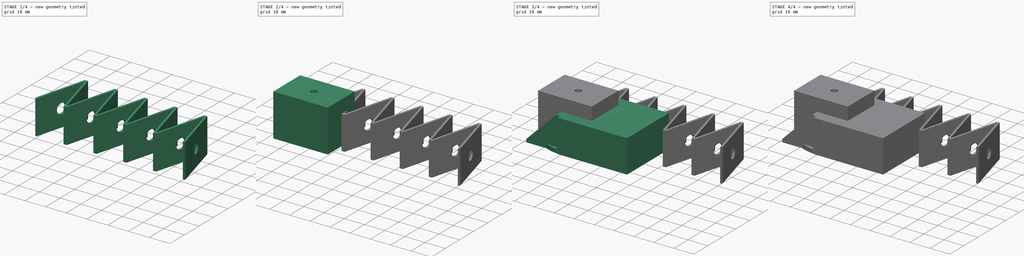
[diagram: build sequence overview — one tinted view per stage of 4, left to right]
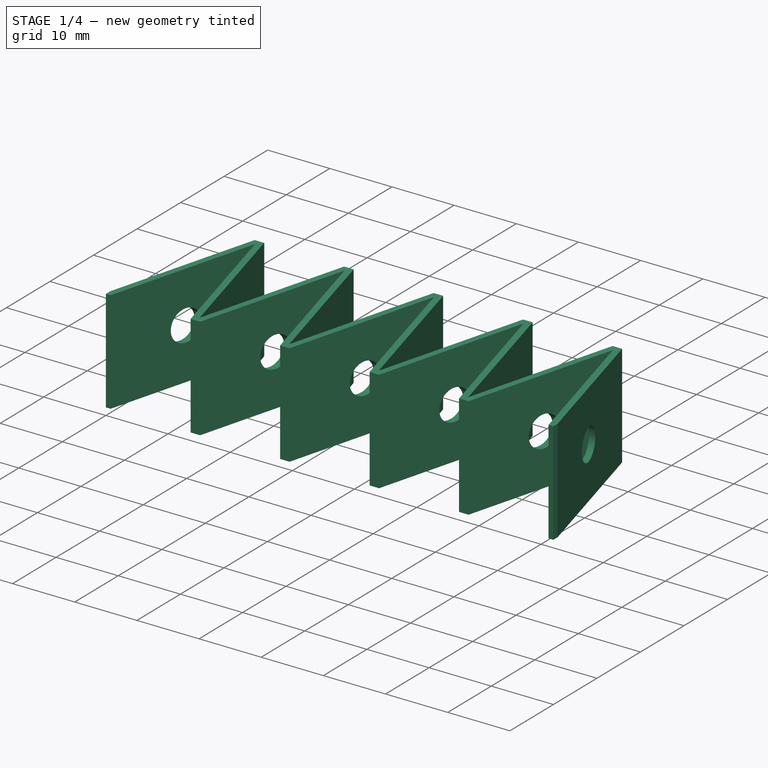
[diagram: stage 1 of 4 — iso view after this stage's code; geometry added in this stage tinted green]
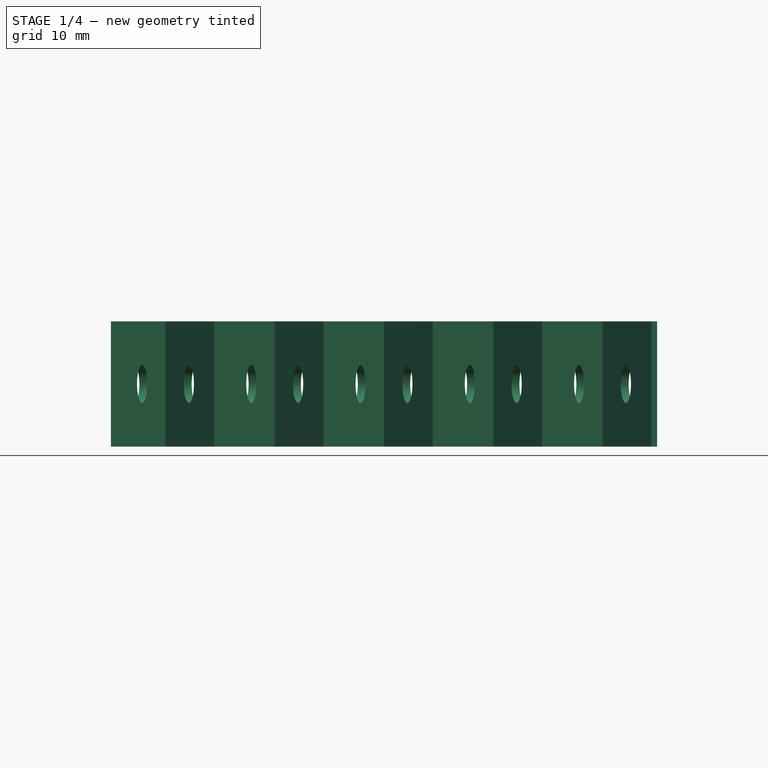
[diagram: stage 1 of 4 — front view after this stage's code; geometry added in this stage tinted green]
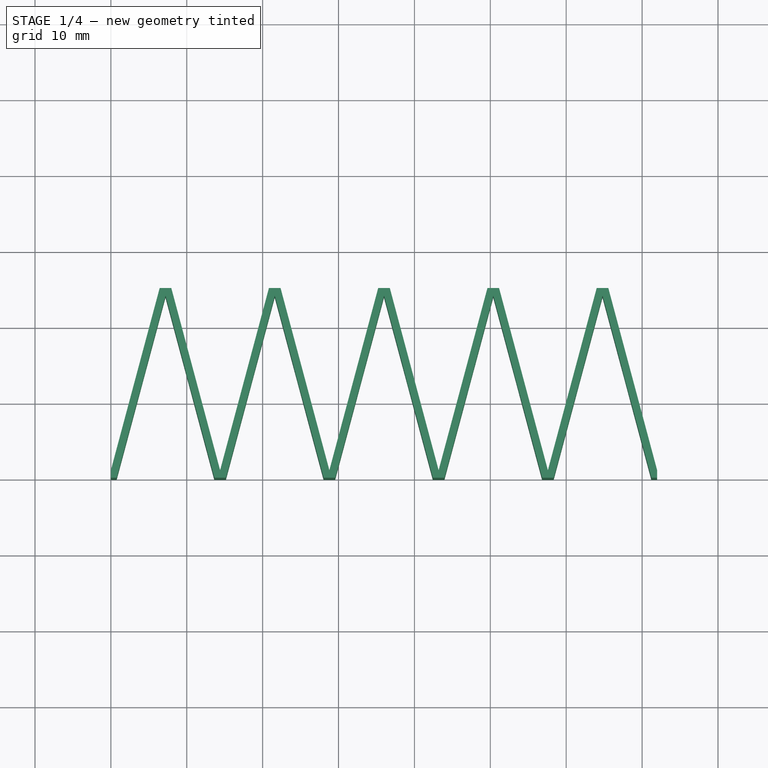
[diagram: stage 1 of 4 — top view after this stage's code; geometry added in this stage tinted green]
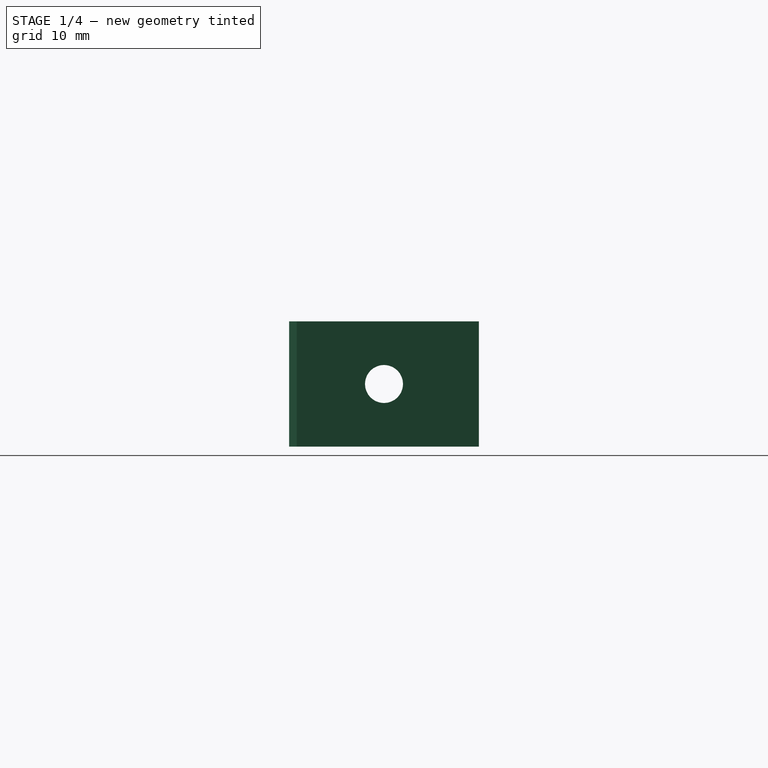
[diagram: stage 1 of 4 — right view after this stage's code; geometry added in this stage tinted green]
FCSTD DOCUMENT  (FreeCAD 0.21R33771 (Git))
Label: door
License: All rights reserved
LicenseURL: https://en.wikipedia.org/wiki/All_rights_reserved
objects: Sketcher::SketchObject×9, PartDesign::Pad×6, PartDesign::Plane×4, PartDesign::Body×4, PartDesign::Pocket×3, Spreadsheet::Sheet×1, PartDesign::Chamfer×1
note: 37 computed .brp shape members not serialized (recipe doc carries the construction recipe); baked Part::Feature solids carry a one-line shape summary decoded from their .brp

FEATURE [PartDesign::Body] Body001  label="Latch"
  Group = -> [Sketch003,Pad002,Chamfer]
  Origin = -> Origin001
  Tip = -> Chamfer
FEATURE [Sketcher::SketchObject] Sketch005  label="ShapeSketch"
  FullyConstrained = true
  MapMode = 5
  Support = -> [XY_Plane002]
  expr: Constraints[7] = 25 mm
  sketch-geometry (39):
    g0: LineSegment StartX=0 StartY=0 StartZ=0 EndX=80 EndY=0 EndZ=0
    g1: LineSegment StartX=80 StartY=0 StartZ=0 EndX=80 EndY=25 EndZ=0
    g2: LineSegment StartX=80 StartY=25 StartZ=0 EndX=0 EndY=25 EndZ=0
    g3: LineSegment StartX=0 StartY=25 StartZ=0 EndX=0 EndY=0 EndZ=0
    g4: LineSegment StartX=0 StartY=24 StartZ=0 EndX=80 EndY=24 EndZ=0
    g5: LineSegment StartX=0 StartY=1 StartZ=0 EndX=80 EndY=1 EndZ=0
    g6: LineSegment StartX=0 StartY=1 StartZ=0 EndX=6.43078 EndY=25 EndZ=0
    g7: LineSegment StartX=6.43078 StartY=25 StartZ=0 EndX=7.96543 EndY=25 EndZ=0
    g8: LineSegment StartX=7.96543 StartY=25 StartZ=0 EndX=14.3962 EndY=1 EndZ=0
    g9: LineSegment StartX=14.3962 StartY=1 StartZ=0 EndX=20.827 EndY=25 EndZ=0
    g10: LineSegment StartX=20.827 StartY=25 StartZ=0 EndX=22.3616 EndY=25 EndZ=0
    g11: LineSegment StartX=22.3616 StartY=25 StartZ=0 EndX=28.7924 EndY=1 EndZ=0
    g12: LineSegment StartX=0 StartY=0 StartZ=0 EndX=0.767327 EndY=0 EndZ=0
    g13: LineSegment StartX=0.767327 StartY=0 StartZ=0 EndX=7.19811 EndY=24 EndZ=0
    g14: LineSegment StartX=7.19811 StartY=24 StartZ=0 EndX=13.6289 EndY=0 EndZ=0
    g15: LineSegment StartX=13.6289 StartY=0 StartZ=0 EndX=15.1635 EndY=0 EndZ=0
    g16: LineSegment StartX=15.1635 StartY=0 StartZ=0 EndX=21.5943 EndY=24 EndZ=0
    g17: LineSegment StartX=21.5943 StartY=24 StartZ=0 EndX=28.0251 EndY=0 EndZ=0
    g18: LineSegment StartX=28.0251 StartY=0 StartZ=0 EndX=29.5598 EndY=0 EndZ=0
    g19: LineSegment StartX=28.7924 StartY=1 StartZ=0 EndX=35.2232 EndY=25 EndZ=0
    g20: LineSegment StartX=35.2232 StartY=25 StartZ=0 EndX=36.7579 EndY=25 EndZ=0
    g21: LineSegment StartX=36.7579 StartY=25 StartZ=0 EndX=43.1886 EndY=1 EndZ=0
    g22: LineSegment StartX=43.1886 StartY=1 StartZ=0 EndX=49.6194 EndY=25 EndZ=0
    g23: LineSegment StartX=49.6194 StartY=25 StartZ=0 EndX=51.1541 EndY=25 EndZ=0
    g24: LineSegment StartX=29.5598 StartY=0 StartZ=0 EndX=35.9905 EndY=24 EndZ=0
    g25: LineSegment StartX=35.9905 StartY=24 StartZ=0 EndX=42.4213 EndY=0 EndZ=0
    g26: LineSegment StartX=42.4213 StartY=0 StartZ=0 EndX=43.956 EndY=0 EndZ=0
    g27: LineSegment StartX=43.956 StartY=0 StartZ=0 EndX=50.3868 EndY=24 EndZ=0
    g28: LineSegment StartX=50.3868 StartY=24 StartZ=0 EndX=56.8175 EndY=0 EndZ=0
    g29: LineSegment StartX=56.8175 StartY=0 StartZ=0 EndX=58.3522 EndY=0 EndZ=0
    g30: LineSegment StartX=51.1541 StartY=25 StartZ=0 EndX=57.5849 EndY=1 EndZ=0
    g31: LineSegment StartX=57.5849 StartY=1 StartZ=0 EndX=64.0156 EndY=25 EndZ=0
    g32: LineSegment StartX=64.0156 StartY=25 StartZ=0 EndX=65.5503 EndY=25 EndZ=0
    g33: LineSegment StartX=65.5503 StartY=25 StartZ=0 EndX=71.9811 EndY=1 EndZ=0
    g34: LineSegment StartX=58.3522 StartY=0 StartZ=0 EndX=64.783 EndY=24 EndZ=0
    g35: LineSegment StartX=64.783 StartY=24 StartZ=0 EndX=71.2137 EndY=0 EndZ=0
    g36: LineSegment StartX=71.9811 StartY=1 StartZ=0 EndX=71.9811 EndY=0 EndZ=0
    g37: LineSegment StartX=71.9811 StartY=0 StartZ=0 EndX=71.2137 EndY=0 EndZ=0
    g38: LineSegment StartX=0 StartY=1 StartZ=0 EndX=0 EndY=0 EndZ=0
  constraints (116):
    c: Coincident(g0,g1)
    c: Coincident(g1,g2)
    c: Coincident(g2,g3)
    c: Coincident(g3,g0)
    c: Vertical(g1)
    c: Vertical(g3)
    c: Coincident(g0,g-1)
    c: Distance(g1) = 25
    c: Distance(g2) = 80
    c: PointOnObject(g4,g3)
    c: PointOnObject(g4,g1)
    c: Horizontal(g4)
    c: PointOnObject(g5,g3)
    c: PointOnObject(g5,g1)
    c: Horizontal(g5)
    c: Distance(g5,g0) = 1
    c: Distance(g4,g2) = 1
    c: Coincident(g5,g6)
    c: PointOnObject(g6,g2)
    c: Coincident(g6,g7)
    c: PointOnObject(g7,g2)
    c: Horizontal(g7)
    c: Coincident(g7,g8)
    c: PointOnObject(g8,g5)
    c: Coincident(g8,g9)
    c: PointOnObject(g9,g2)
    c: Coincident(g9,g10)
    c: PointOnObject(g10,g2)
    c: Coincident(g10,g11)
    c: PointOnObject(g11,g5)
    c: Coincident(g0,g12)
    c: PointOnObject(g12,g0)
    c: Horizontal(g12)
    c: Coincident(g12,g13)
    c: PointOnObject(g13,g4)
    c: Coincident(g13,g14)
    c: PointOnObject(g14,g0)
    c: Coincident(g14,g15)
    c: PointOnObject(g15,g0)
    c: Coincident(g15,g16)
    c: PointOnObject(g16,g4)
    c: Coincident(g16,g17)
    c: PointOnObject(g17,g0)
    c: Coincident(g17,g18)
    c: PointOnObject(g18,g0)
    c: Equal(g13,g14)
    c: Distance(g6,g13) = 1
    c: Distance(g13,g6) = 1
    c: Angle(g13,g14) = 0.523599
    c: Distance(g13,g8) = 1
    c: Distance(g8,g14) = 1
    c: Distance(g8,g16) = 1
    c: Distance(g16,g9) = 1
    c: Equal(g16,g17)
    c: Angle(g16,g17) = 0.523599
    c: Distance(g16,g11) = 1
    c: Distance(g11,g17) = 1
    c: Coincident(g11,g19)
    c: PointOnObject(g19,g2)
    c: Coincident(g19,g20)
    c: Coincident(g20,g21)
    c: PointOnObject(g21,g5)
    c: Coincident(g21,g22)
    c: PointOnObject(g22,g2)
    c: Coincident(g22,g23)
    c: Coincident(g18,g24)
    c: Coincident(g24,g25)
    c: PointOnObject(g25,g0)
    c: PointOnObject(g24,g4)
    c: PointOnObject(g20,g2)
    c: Distance(g11,g24) = 1
    c: Distance(g24,g19) = 1
    c: Equal(g25,g24)
    c: Angle(g24,g25) = 0.523599
    c: Distance(g24,g21) = 1
    c: Distance(g21,g25) = 1
    c: Coincident(g25,g26)
    c: PointOnObject(g26,g0)
    c: Coincident(g26,g27)
    c: PointOnObject(g27,g4)
    c: Coincident(g27,g28)
    c: PointOnObject(g28,g0)
    c: Coincident(g28,g29)
    c: PointOnObject(g29,g0)
    c: Coincident(g23,g30)
    c: PointOnObject(g30,g5)
    c: Coincident(g30,g31)
    c: PointOnObject(g31,g2)
    c: Distance(g21,g27) = 1
    c: Distance(g27,g22) = 1
    c: PointOnObject(g23,g2)
    c: Distance(g27,g30) = 1
    c: Equal(g27,g28)
    c: Angle(g27,g28) = 0.523599
    c: Distance(g30,g28) = 1
    c: Coincident(g31,g32)
    c: PointOnObject(g32,g2)
    c: Coincident(g32,g33)
    c: PointOnObject(g33,g5)
    c: Coincident(g29,g34)
    c: PointOnObject(g34,g4)
    c: Coincident(g34,g35)
    c: Distance(g29,g31) = 1
    c: Equal(g35,g34)
    c: Angle(g34,g35) = 0.523599
    c: Distance(g34,g31) = 1
    c: Distance(g34,g33) = 1
    c: Distance(g35,g33) = 1
    c: Coincident(g33,g36)
    c: PointOnObject(g36,g0)
    c: Vertical(g36)
    c: Coincident(g36,g37)
    c: Coincident(g37,g35)
    c: PointOnObject(g35,g0)
    c: Coincident(g6,g38)
    c: Coincident(g38,g12)
FEATURE [PartDesign::Pad] Pad003  label="ShapePad"
  Direction = (0,0,1)
  Length = 16.5
  Length2 = 10
  Profile = -> Sketch005
  ReferenceAxis = -> Sketch005 [N_Axis]
  Type = 0
  expr: Length = <<d>>.LatchThickness
FEATURE [PartDesign::Body] Body003  label="CounterBolt"
  Group = -> [Sketch007,Pad004,DatumPlane002,Sketch008,Pad005,DatumPlane003,Sketch009,Pocket001]
  Origin = -> Origin003
  Tip = -> Pocket001
FEATURE [Sketcher::SketchObject] Sketch010  label="HoleSketch"
  ExternalGeometry = -> [Pad003]
  FullyConstrained = true
  MapMode = 5
  Placement = pos=(0,0,0) rot=(0.57735,0.57735,0.57735;2.0944rad)
  Support = -> [YZ_Plane002]
  sketch-geometry (8):
    g0: LineSegment StartX=25 StartY=16.5 StartZ=0 EndX=0 EndY=16.5 EndZ=0
    g1: LineSegment StartX=0 StartY=16.5 StartZ=0 EndX=0 EndY=0 EndZ=0
    g2: LineSegment StartX=0 StartY=0 StartZ=0 EndX=25 EndY=0 EndZ=0
    g3: LineSegment StartX=25 StartY=0 StartZ=0 EndX=25 EndY=16.5 EndZ=0
    g4: LineSegment StartX=0 StartY=0 StartZ=0 EndX=25 EndY=16.5 EndZ=0
    g5: LineSegment StartX=0 StartY=16.5 StartZ=0 EndX=25 EndY=0 EndZ=0
    g6: GeomPoint X=12.5 Y=8.25 Z=0
    g7: Circle CenterX=12.5 CenterY=8.25 CenterZ=0 NormalX=0 NormalY=0 NormalZ=1 AngleXU=0 Radius=2.5
  constraints (18):
    c: Coincident(g0,g1)
    c: Coincident(g1,g2)
    c: Coincident(g2,g3)
    c: Coincident(g3,g0)
    c: Horizontal(g0)
    c: Horizontal(g2)
    c: Vertical(g1)
    c: Vertical(g3)
    c: Coincident(g0,g-3)
    c: Coincident(g1,g-1)
    c: Coincident(g4,g1)
    c: Coincident(g4,g0)
    c: Coincident(g5,g0)
    c: Coincident(g5,g2)
    c: PointOnObject(g6,g4)
    c: Coincident(g7,g6)
    c: Diameter(g7) = 5
    c: PointOnObject(g7,g5)
FEATURE [PartDesign::Pocket] Pocket002  label="HolePocket"
  BaseFeature = -> Pad003
  Direction = (-1,2e-16,-3e-16)
  Length = 5
  Length2 = 5
  Midplane = true
  Profile = -> Sketch010
  ReferenceAxis = -> Sketch010 [N_Axis]
  Type = 1
FEATURE [PartDesign::Body] Body002  label="Spring"
  Group = -> [Sketch005,Pad003,Sketch010,Pocket002]
  Origin = -> Origin002
  Tip = -> Pocket002
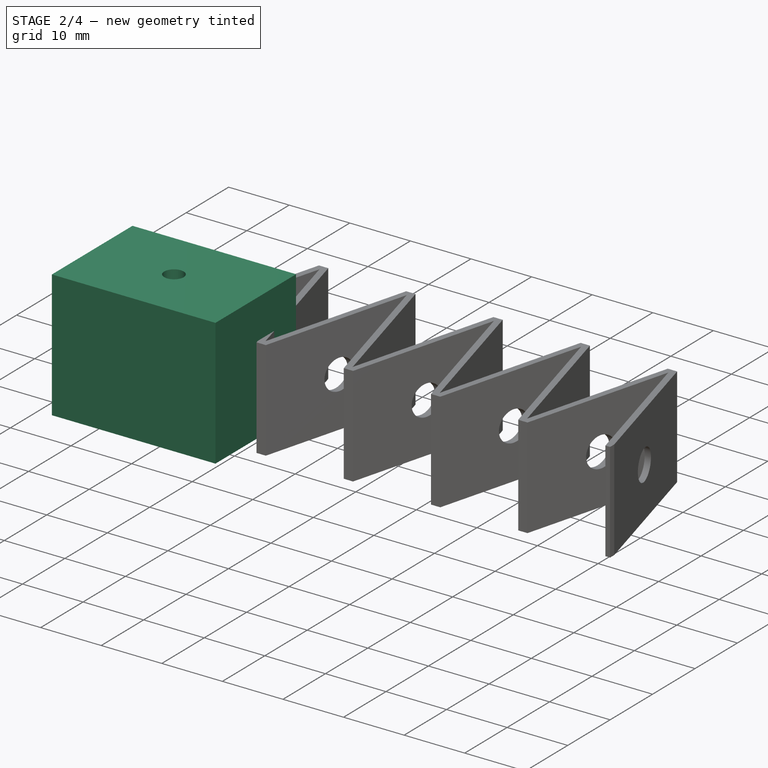
[diagram: stage 2 of 4 — iso view after this stage's code; geometry added in this stage tinted green]
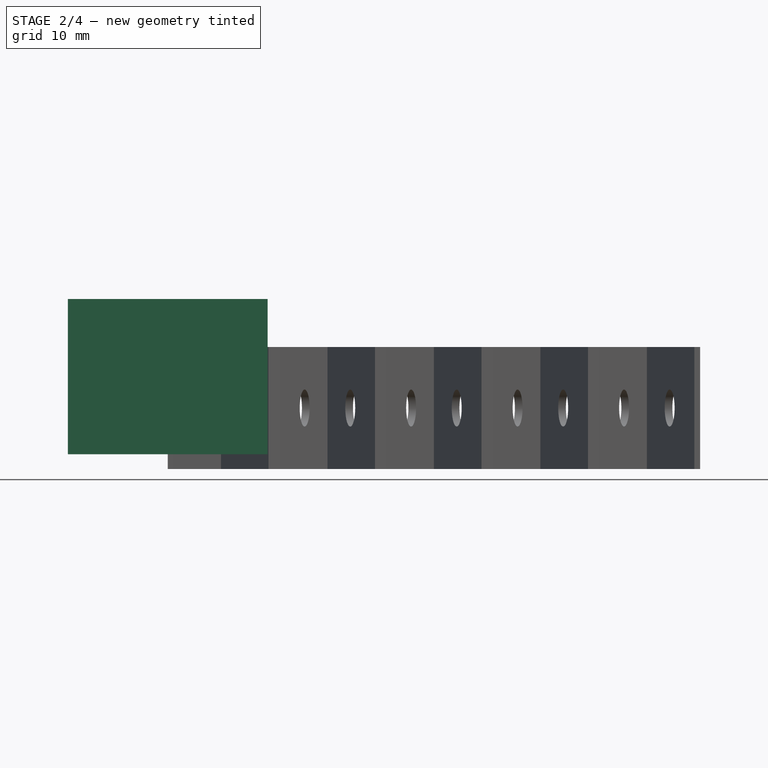
[diagram: stage 2 of 4 — front view after this stage's code; geometry added in this stage tinted green]
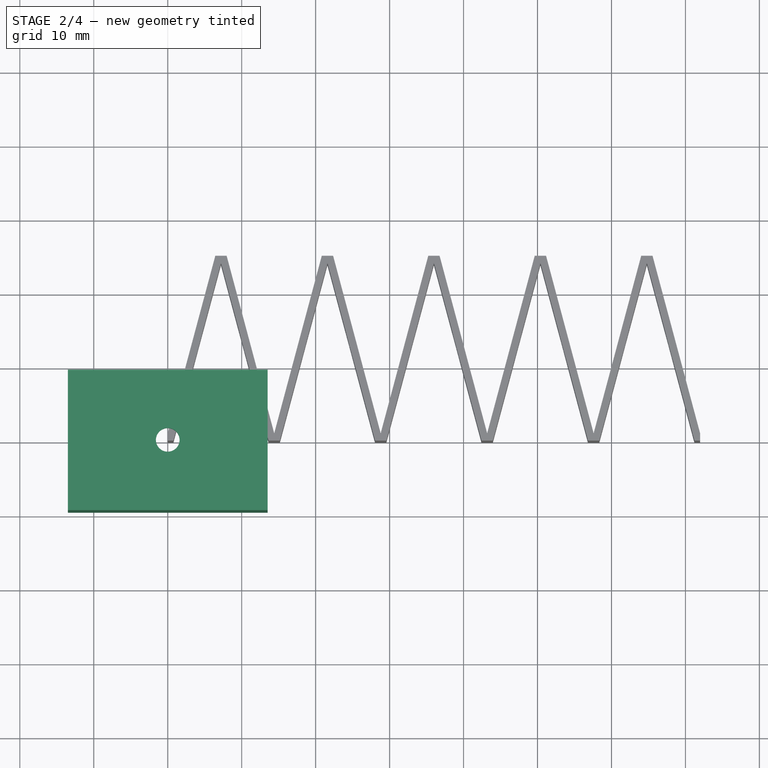
[diagram: stage 2 of 4 — top view after this stage's code; geometry added in this stage tinted green]
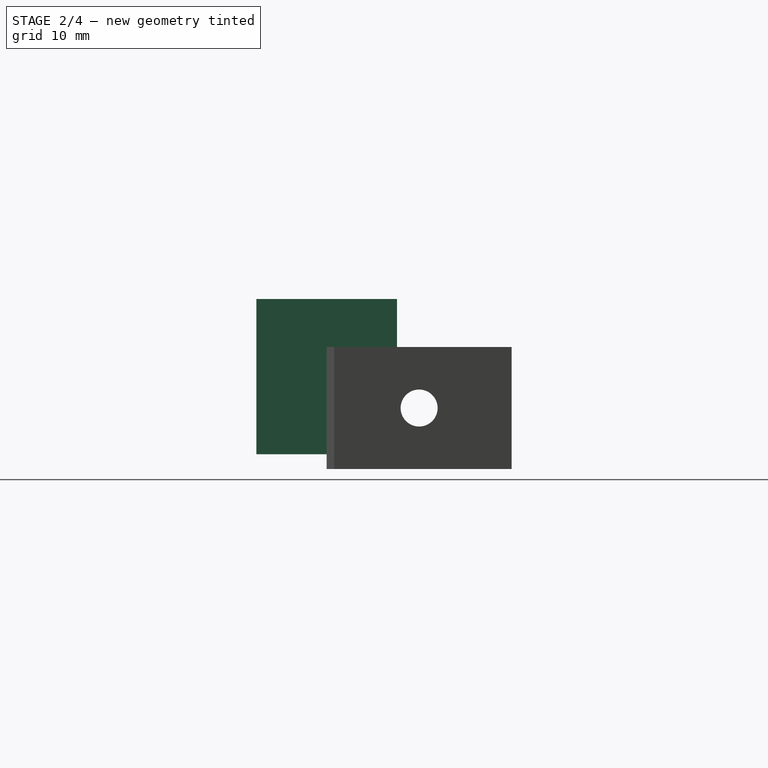
[diagram: stage 2 of 4 — right view after this stage's code; geometry added in this stage tinted green]
FEATURE [Sketcher::SketchObject] Sketch007
  FullyConstrained = true
  Placement = pos=(0,0,2) rot=(0,0,1;0rad)
  Support = -> [Origin003]
  expr: Constraints[14] = <<d>>.BoltLength + 10 mm
  expr: Constraints[15] = <<d>>.BoltWidth + 10 mm
  expr: Constraints[18] = <<d>>.BoltLength + <<d>>.Clearance
  expr: Constraints[19] = <<d>>.BoltWidth + <<d>>.Clearance
  sketch-geometry (8):
    g0: LineSegment StartX=-8.75 StartY=4.75 StartZ=0 EndX=8.75 EndY=4.75 EndZ=0
    g1: LineSegment StartX=8.75 StartY=4.75 StartZ=0 EndX=8.75 EndY=-4.75 EndZ=0
    g2: LineSegment StartX=8.75 StartY=-4.75 StartZ=0 EndX=-8.75 EndY=-4.75 EndZ=0
    g3: LineSegment StartX=-8.75 StartY=-4.75 StartZ=0 EndX=-8.75 EndY=4.75 EndZ=0
    g4: LineSegment StartX=-13.5 StartY=9.5 StartZ=0 EndX=13.5 EndY=9.5 EndZ=0
    g5: LineSegment StartX=13.5 StartY=9.5 StartZ=0 EndX=13.5 EndY=-9.5 EndZ=0
    g6: LineSegment StartX=13.5 StartY=-9.5 StartZ=0 EndX=-13.5 EndY=-9.5 EndZ=0
    g7: LineSegment StartX=-13.5 StartY=-9.5 StartZ=0 EndX=-13.5 EndY=9.5 EndZ=0
  constraints (20):
    c: Coincident(g0,g1)
    c: Coincident(g1,g2)
    c: Coincident(g2,g3)
    c: Coincident(g3,g0)
    c: Horizontal(g2)
    c: Vertical(g3)
    c: Coincident(g4,g5)
    c: Coincident(g5,g6)
    c: Coincident(g6,g7)
    c: Coincident(g7,g4)
    c: Horizontal(g6)
    c: Vertical(g7)
    c: Symmetric(g4,g4,g-2)
    c: Symmetric(g4,g5,g-1)
    c: Distance(g4) = 27
    c: Distance(g5) = 19
    c: Symmetric(g0,g0,g-2)
    c: Symmetric(g0,g1,g-1)
    c: Distance(g0) = 17.5
    c: Distance(g1) = 9.5
FEATURE [PartDesign::Pad] Pad004
  Direction = (0,0,1)
  Length = 19
  Length2 = 10
  Placement = pos=(0,0,2) rot=(0,0,1;0rad)
  Profile = -> Sketch007
  ReferenceAxis = -> Sketch007 [N_Axis]
  Type = 0
  expr: Length = 19 mm
FEATURE [PartDesign::Plane] DatumPlane002
  Length = 60
  MapMode = 5
  Placement = pos=(0,0,21) rot=(0,0,1;0rad)
  ResizeMode = 0
  Support = -> [Pad004]
  Width = 60
FEATURE [Sketcher::SketchObject] Sketch008
  ExternalGeometry = -> [Pad004]
  FullyConstrained = true
  MapMode = 5
  Placement = pos=(0,0,21) rot=(0,0,1;0rad)
  Support = -> [DatumPlane002]
  sketch-geometry (4):
    g0: LineSegment StartX=-13.5 StartY=9.5 StartZ=0 EndX=13.5 EndY=9.5 EndZ=0
    g1: LineSegment StartX=13.5 StartY=9.5 StartZ=0 EndX=13.5 EndY=-9.5 EndZ=0
    g2: LineSegment StartX=13.5 StartY=-9.5 StartZ=0 EndX=-13.5 EndY=-9.5 EndZ=0
    g3: LineSegment StartX=-13.5 StartY=-9.5 StartZ=0 EndX=-13.5 EndY=9.5 EndZ=0
  constraints (10):
    c: Coincident(g0,g1)
    c: Coincident(g1,g2)
    c: Coincident(g2,g3)
    c: Coincident(g3,g0)
    c: Horizontal(g0)
    c: Horizontal(g2)
    c: Vertical(g1)
    c: Vertical(g3)
    c: Coincident(g0,g-3)
    c: Coincident(g1,g-4)
FEATURE [PartDesign::Pad] Pad005
  BaseFeature = -> Pad004
  Direction = (0,0,1)
  Length = 2
  Length2 = 10
  Placement = pos=(0,0,2) rot=(0,0,1;0rad)
  Profile = -> Sketch008
  ReferenceAxis = -> Sketch008 [N_Axis]
  Type = 0
  expr: Length = <<d>>.BoltDiscThickness
FEATURE [PartDesign::Plane] DatumPlane003
  Length = 60
  MapMode = 5
  Placement = pos=(0,0,23) rot=(0,0,1;0rad)
  ResizeMode = 0
  Support = -> [Pad005]
  Width = 60
FEATURE [Sketcher::SketchObject] Sketch009
  FullyConstrained = true
  MapMode = 5
  Placement = pos=(0,0,23) rot=(0,0,1;0rad)
  Support = -> [DatumPlane003]
  expr: Constraints[1] = <<d>>.ScrewHoleDiameter
  sketch-geometry (1):
    g0: Circle CenterX=0 CenterY=0 CenterZ=0 NormalX=0 NormalY=0 NormalZ=1 AngleXU=0 Radius=1.6
  constraints (2):
    c: Coincident(g0,g-1)
    c: Diameter(g0) = 3.2
FEATURE [PartDesign::Pocket] Pocket001
  BaseFeature = -> Pad005
  Direction = (0,0,-1)
  Length = 5
  Length2 = 5
  Placement = pos=(0,0,2) rot=(0,0,1;0rad)
  Profile = -> Sketch009
  ReferenceAxis = -> Sketch009 [N_Axis]
  Type = 1
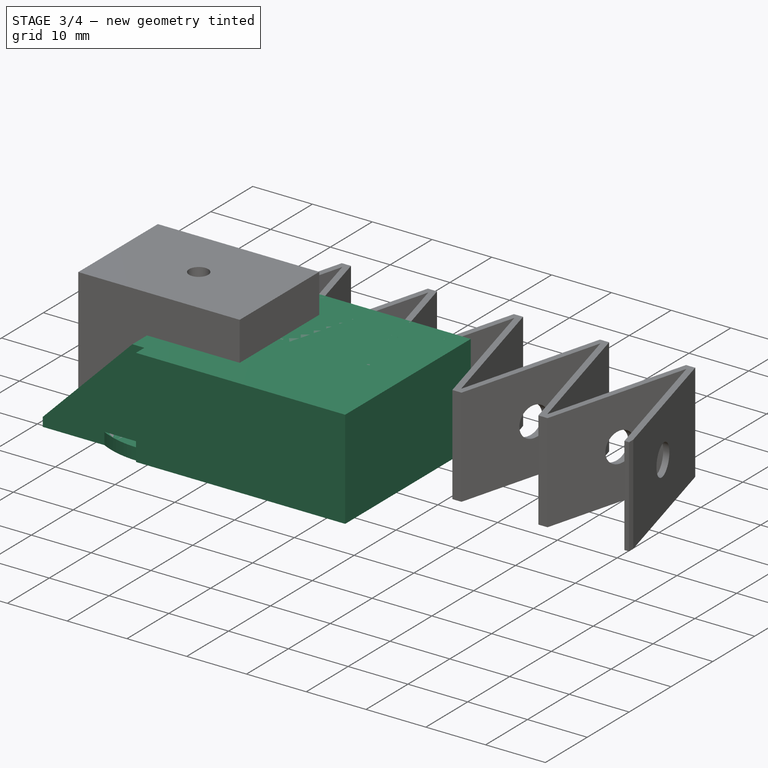
[diagram: stage 3 of 4 — iso view after this stage's code; geometry added in this stage tinted green]
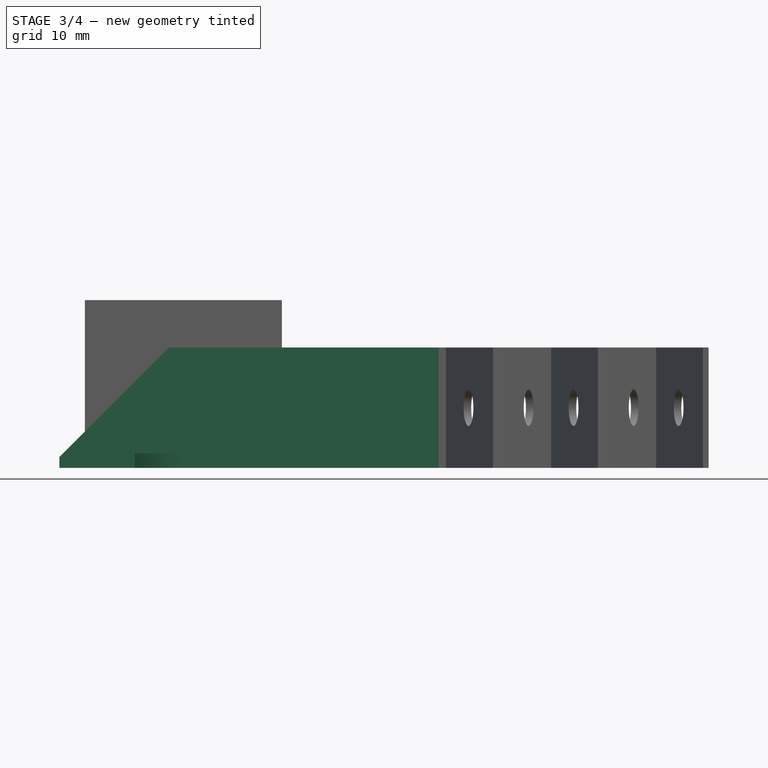
[diagram: stage 3 of 4 — front view after this stage's code; geometry added in this stage tinted green]
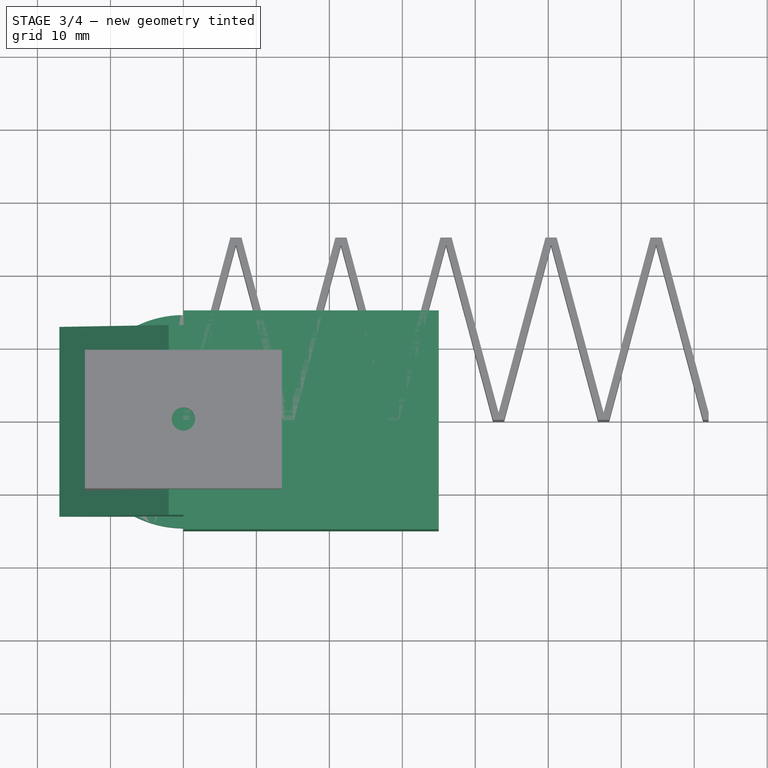
[diagram: stage 3 of 4 — top view after this stage's code; geometry added in this stage tinted green]
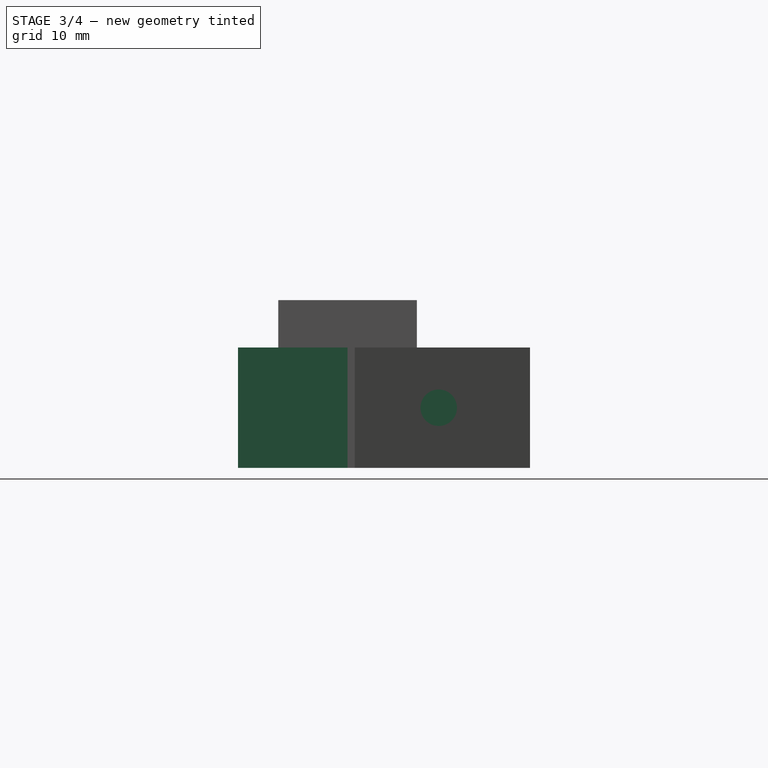
[diagram: stage 3 of 4 — right view after this stage's code; geometry added in this stage tinted green]
FEATURE [Spreadsheet::Sheet] Spreadsheet  label="d"
  cells = A1='BoltWidth; B1(BoltWidth)==9 mm; A2='ScrewHoleDiameter; B2(ScrewHoleDiameter)==3.2 mm; A3='Clearance; B3(Clearance)==0.5 mm; A4='BoltOverlap; B4(BoltOverlap)==5 mm; A5='BoltDiscThickness; B5(BoltDiscThickness)==2 mm; A6='BoltInnerHeight; B6(BoltInnerHeight)==15 mm; A7='BoltLength; B7(BoltLength)==17 mm; A8='LatchChamferedLength; B8(LatchChamferedLength)==15 mm; A9='LatchChamferedWidth; B9(LatchChamferedWidth)==LatchInnerWidth - 2 * 2 mm; A10='LatchInnerWidth; B10(LatchInnerWidth)==30 mm; A11='LatchInnerLength; B11(LatchInnerLength)==50 mm - LatchChamferedLength; A12='LatchUnchamferedOuterLength; B12(LatchUnchamferedOuterLength)==2 mm; A13='LatchThickness; B13(LatchThickness)==16.5 mm; A14='SpringExtentHeight; B14(SpringExtentHeight)==25 mm; A15='SpringWindingThickness; B15(SpringWindingThickness)==1 mm; A16='SpringHeight; B16(SpringHeight)==15 mm; A17='SprintExtentLength; B17(SprintExtentLength)==110 mm - 40 mm
FEATURE [Sketcher::SketchObject] Sketch  label="OuterSketch"
  FullyConstrained = true
  MapMode = 5
  Support = -> [XY_Plane]
  expr: Constraints[11] = <<d>>.BoltLength
  expr: Constraints[3] = <<d>>.BoltWidth
  expr: Constraints[9] = <<d>>.BoltOverlap
  sketch-geometry (5):
    g0: Circle CenterX=0 CenterY=0 CenterZ=0 NormalX=0 NormalY=0 NormalZ=1 AngleXU=0 Radius=14.6177
    g1: LineSegment StartX=-8.5 StartY=4.5 StartZ=0 EndX=8.5 EndY=4.5 EndZ=0
    g2: LineSegment StartX=8.5 StartY=4.5 StartZ=0 EndX=8.5 EndY=-4.5 EndZ=0
    g3: LineSegment StartX=0 StartY=0 StartZ=0 EndX=12.9189 EndY=6.83944 EndZ=0
    g4: LineSegment StartX=8.5 StartY=4.5 StartZ=0 EndX=12.9189 EndY=6.83944 EndZ=0
  constraints (12):
    c: Coincident(g0,g-1)
    c: Coincident(g1,g2)
    c: Symmetric(g1,g1,g-2)
    c: Distance(g2) = 9
    c: Coincident(g3,g0)
    c: PointOnObject(g3,g0)
    c: PointOnObject(g1,g3)
    c: Coincident(g4,g1)
    c: Coincident(g4,g3)
    c: Distance(g4) = 5
    c: Symmetric(g1,g2,g-1)
    c: Distance(g1) = 17
FEATURE [PartDesign::Pad] Pad  label="OuterPad"
  Direction = (0,0,1)
  Length = 2
  Length2 = 10
  Profile = -> Sketch
  ReferenceAxis = -> Sketch [N_Axis]
  Type = 0
  expr: Length = <<d>>.BoltDiscThickness
FEATURE [PartDesign::Body] Body  label="Bolt"
  Group = -> [Sketch,Pad,DatumPlane,Sketch001,Pad001,DatumPlane001,Sketch002,Pocket]
  Origin = -> Origin
  Tip = -> Pocket
FEATURE [Sketcher::SketchObject] Sketch003  label="ProfileSketch"
  FullyConstrained = true
  MapMode = 5
  Support = -> [XY_Plane001]
  expr: Constraints[20] = <<d>>.LatchInnerWidth
  expr: Constraints[21] = <<d>>.LatchChamferedWidth
  expr: Constraints[24] = <<d>>.LatchUnchamferedOuterLength
  expr: Constraints[25] = <<d>>.LatchChamferedLength
  expr: Constraints[26] = <<d>>.LatchInnerLength
  sketch-geometry (10):
    g0: LineSegment StartX=-17 StartY=13 StartZ=0 EndX=-2 EndY=13 EndZ=0
    g1: LineSegment StartX=-2 StartY=13 StartZ=0 EndX=0 EndY=13 EndZ=0
    g2: LineSegment StartX=0 StartY=13 StartZ=0 EndX=0 EndY=15 EndZ=0
    g3: LineSegment StartX=0 StartY=15 StartZ=0 EndX=35 EndY=15 EndZ=0
    g4: LineSegment StartX=35 StartY=15 StartZ=0 EndX=35 EndY=-15 EndZ=0
    g5: LineSegment StartX=35 StartY=-15 StartZ=0 EndX=0 EndY=-15 EndZ=0
    g6: LineSegment StartX=0 StartY=-15 StartZ=0 EndX=0 EndY=-13 EndZ=0
    g7: LineSegment StartX=0 StartY=-13 StartZ=0 EndX=-2 EndY=-13 EndZ=0
    g8: LineSegment StartX=-2 StartY=-13 StartZ=0 EndX=-17 EndY=-13 EndZ=0
    g9: LineSegment StartX=-17 StartY=-13 StartZ=0 EndX=-17 EndY=13 EndZ=0
  constraints (29):
    c: Horizontal(g0)
    c: Coincident(g0,g1)
    c: PointOnObject(g1,g-2)
    c: Coincident(g1,g2)
    c: PointOnObject(g2,g-2)
    c: Coincident(g2,g3)
    c: Horizontal(g3)
    c: Coincident(g3,g4)
    c: Coincident(g4,g5)
    c: PointOnObject(g5,g-2)
    c: Horizontal(g5)
    c: Coincident(g5,g6)
    c: PointOnObject(g6,g-2)
    c: Coincident(g6,g7)
    c: Horizontal(g7)
    c: Coincident(g7,g8)
    c: Horizontal(g8)
    c: Coincident(g8,g9)
    c: Coincident(g9,g0)
    c: Symmetric(g3,g4,g-1)
    c: Distance(g4) = 30
    c: Distance(g9) = 26
    c: Horizontal(g1)
    c: Vertical(g9)
    c: Distance(g1) = 2
    c: Distance(g0) = 15
    c: Distance(g3) = 35
    c: Equal(g6,g2)
    c: Equal(g1,g7)
FEATURE [PartDesign::Pad] Pad002  label="ProfilePad"
  Direction = (0,0,1)
  Length = 16.5
  Length2 = 10
  Profile = -> Sketch003
  ReferenceAxis = -> Sketch003 [N_Axis]
  Type = 0
  expr: Length = <<d>>.LatchThickness
FEATURE [PartDesign::Chamfer] Chamfer
  Angle = 45
  Base = -> Pad002 [Edge30]
  BaseFeature = -> Pad002
  ChamferType = 0
  FlipDirection = false
  Size = 15
  Size2 = 1
  SupportTransform = false
  UseAllEdges = false
  expr: Size = 15 mm
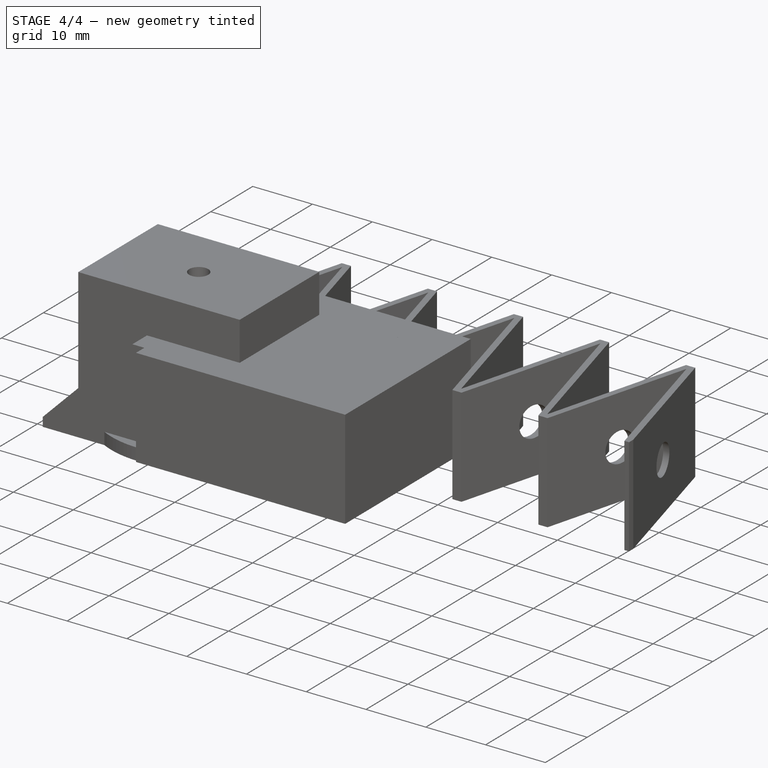
[diagram: stage 4 of 4 — iso view after this stage's code; geometry added in this stage tinted green]
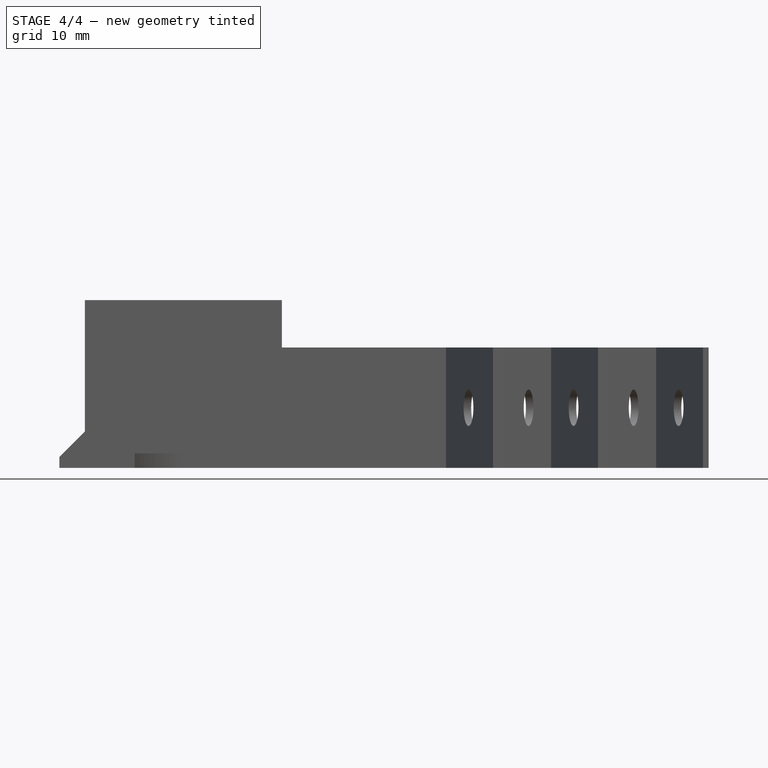
[diagram: stage 4 of 4 — front view after this stage's code; geometry added in this stage tinted green]
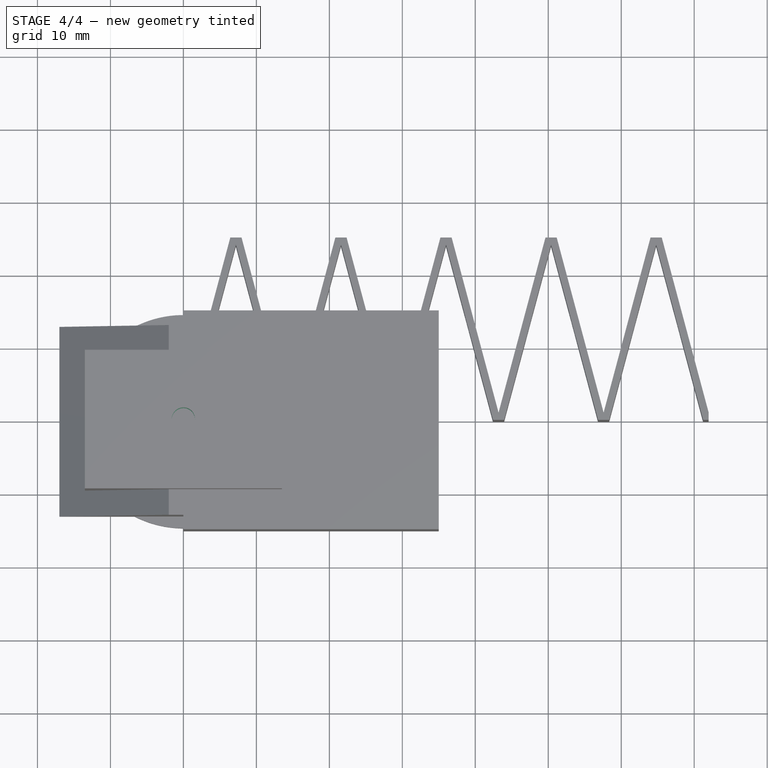
[diagram: stage 4 of 4 — top view after this stage's code; geometry added in this stage tinted green]
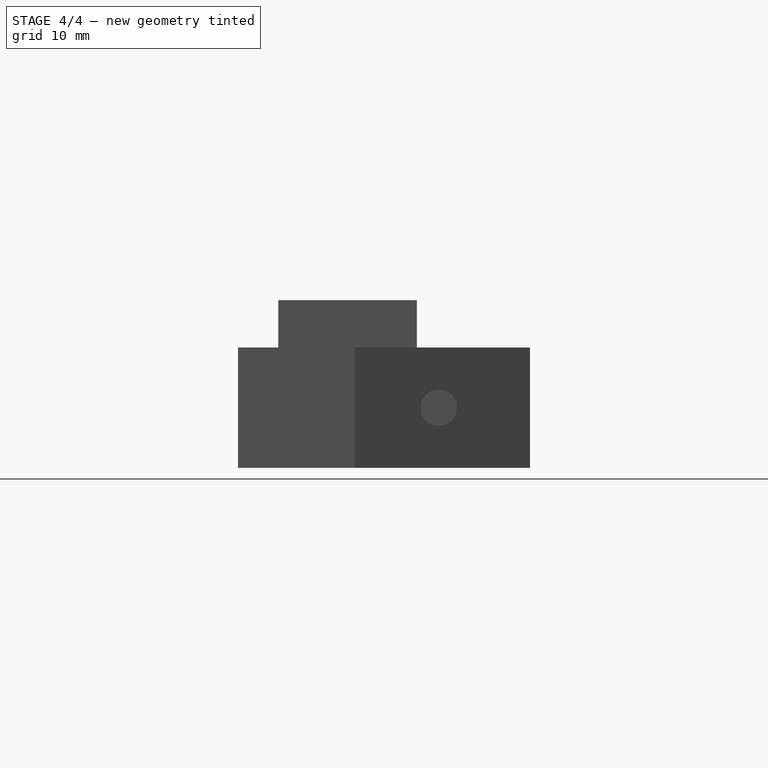
[diagram: stage 4 of 4 — right view after this stage's code; geometry added in this stage tinted green]
FEATURE [PartDesign::Plane] DatumPlane
  Length = 60
  MapMode = 5
  Placement = pos=(0,0,2) rot=(0,0,1;0rad)
  ResizeMode = 0
  Support = -> [Pad]
  Width = 60
FEATURE [Sketcher::SketchObject] Sketch001  label="InnerSketch"
  FullyConstrained = true
  MapMode = 5
  Placement = pos=(0,0,2) rot=(0,0,1;0rad)
  Support = -> [DatumPlane]
  expr: Constraints[8] = <<d>>.BoltWidth
  expr: Constraints[9] = <<d>>.BoltLength
  sketch-geometry (4):
    g0: LineSegment StartX=-8.5 StartY=4.5 StartZ=0 EndX=8.5 EndY=4.5 EndZ=0
    g1: LineSegment StartX=8.5 StartY=4.5 StartZ=0 EndX=8.5 EndY=-4.5 EndZ=0
    g2: LineSegment StartX=8.5 StartY=-4.5 StartZ=0 EndX=-8.5 EndY=-4.5 EndZ=0
    g3: LineSegment StartX=-8.5 StartY=-4.5 StartZ=0 EndX=-8.5 EndY=4.5 EndZ=0
  constraints (10):
    c: Coincident(g0,g1)
    c: Coincident(g1,g2)
    c: Coincident(g2,g3)
    c: Coincident(g3,g0)
    c: Horizontal(g2)
    c: Vertical(g3)
    c: Symmetric(g0,g0,g-2)
    c: Symmetric(g0,g1,g-1)
    c: Distance(g3) = 9
    c: Distance(g2) = 17
FEATURE [PartDesign::Pad] Pad001  label="InnerPad"
  BaseFeature = -> Pad
  Direction = (0,0,1)
  Length = 15
  Length2 = 10
  Profile = -> Sketch001
  ReferenceAxis = -> Sketch001 [N_Axis]
  Type = 0
  expr: Length = <<d>>.BoltInnerHeight
FEATURE [PartDesign::Plane] DatumPlane001
  Length = 60
  MapMode = 5
  Placement = pos=(0,0,17) rot=(0,0,1;0rad)
  ResizeMode = 0
  Support = -> [Pad001]
  Width = 60
FEATURE [Sketcher::SketchObject] Sketch002  label="ScrewHoleSketch"
  FullyConstrained = true
  MapMode = 5
  Placement = pos=(0,0,17) rot=(0,0,1;0rad)
  Support = -> [DatumPlane001]
  expr: Constraints[1] = <<d>>.ScrewHoleDiameter
  sketch-geometry (1):
    g0: Circle CenterX=0 CenterY=0 CenterZ=0 NormalX=0 NormalY=0 NormalZ=1 AngleXU=0 Radius=1.6
  constraints (2):
    c: Coincident(g0,g-1)
    c: Diameter(g0) = 3.2
FEATURE [PartDesign::Pocket] Pocket  label="ScrewHolePocket"
  BaseFeature = -> Pad001
  Direction = (0,0,-1)
  Length = 15
  Length2 = 5
  Profile = -> Sketch002
  ReferenceAxis = -> Sketch002 [N_Axis]
  Type = 0
  expr: Length = <<d>>.BoltInnerHeight
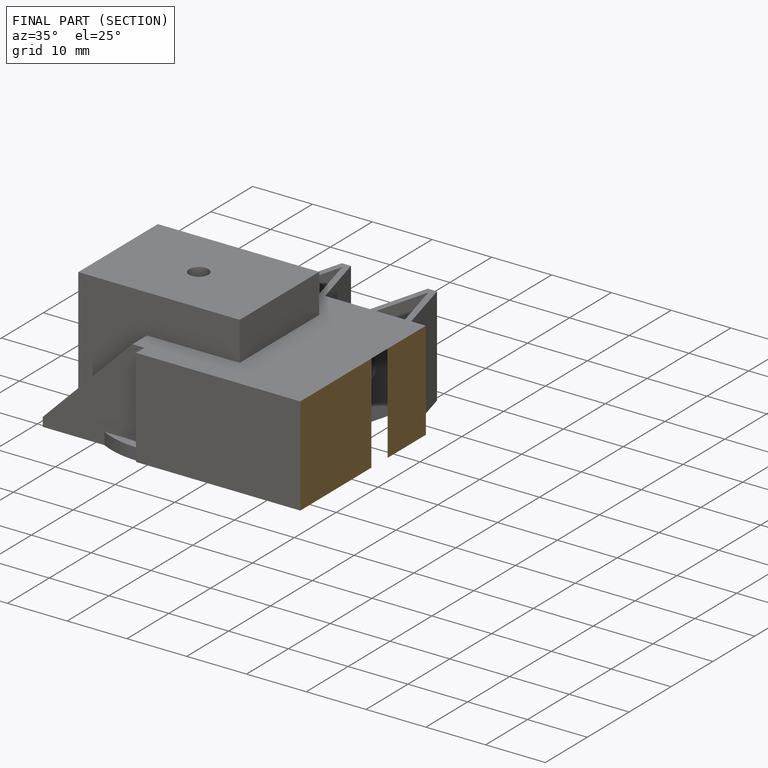
[diagram: finished part — half-section view (interior)]
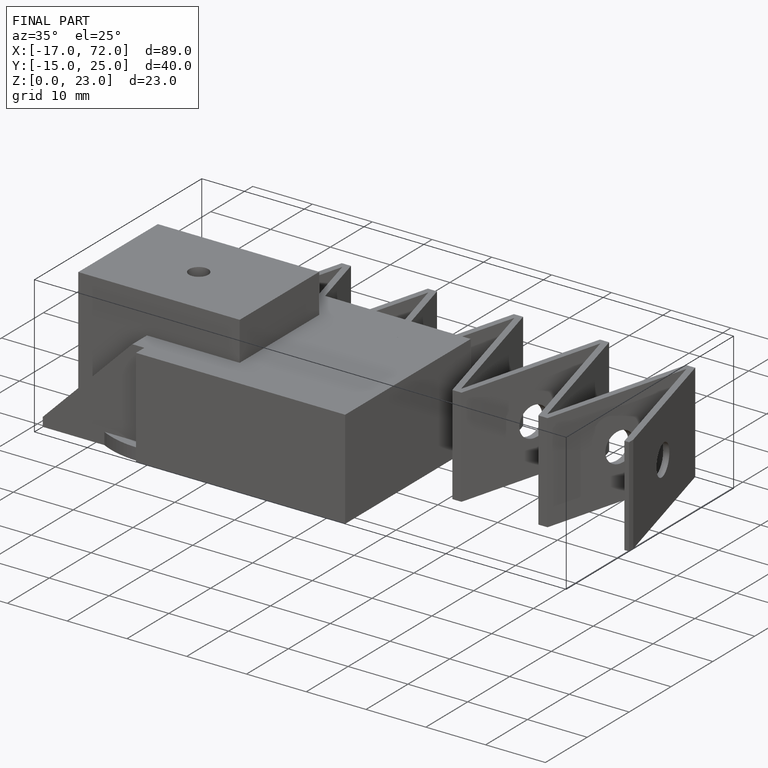
[diagram: finished part — iso view with bounding-box wireframe]
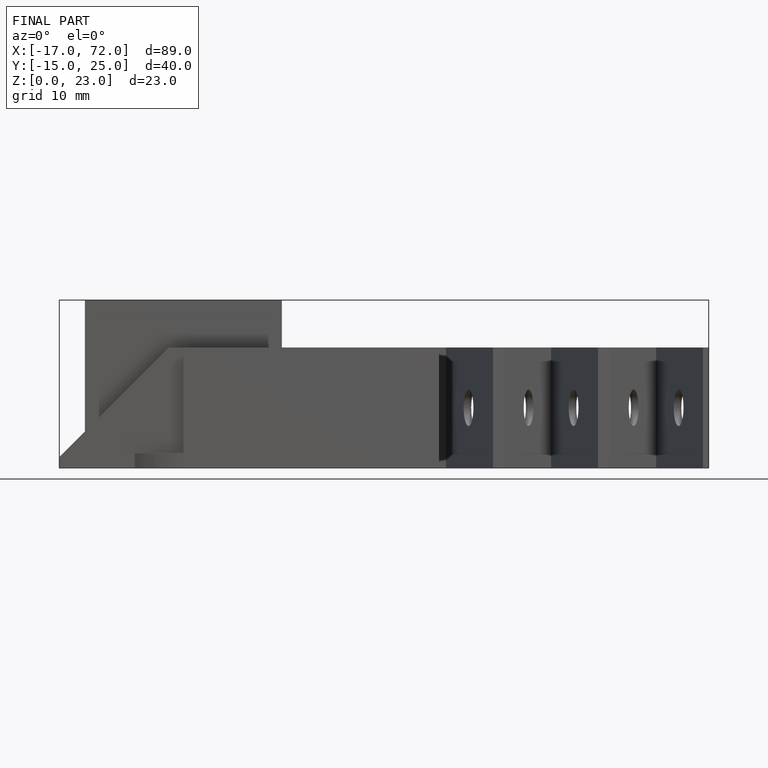
[diagram: finished part — front view with bounding-box wireframe]
